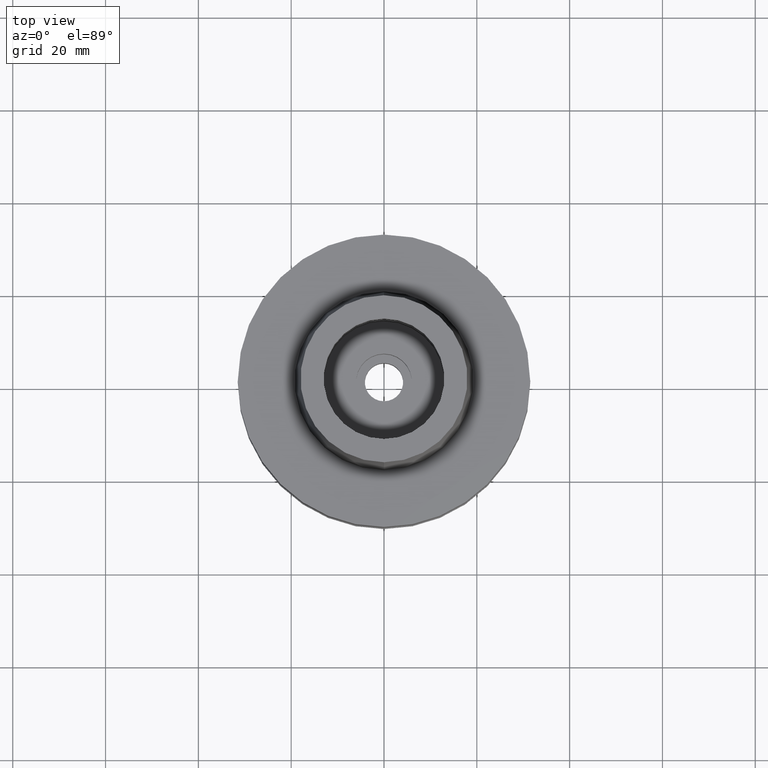
[diagram: clean part render]
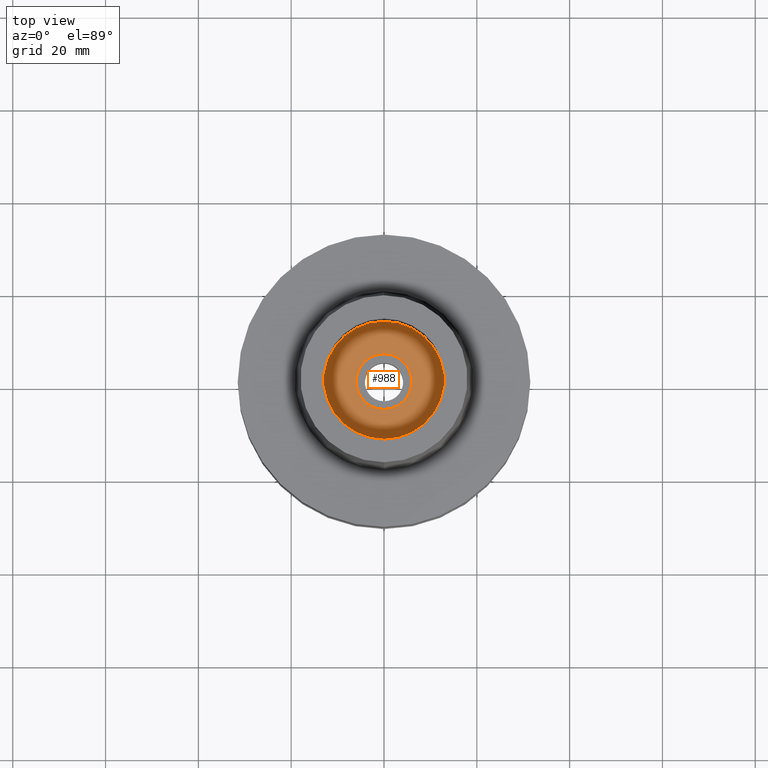
[diagram: same view with one face highlighted and labeled with its STEP entity id]
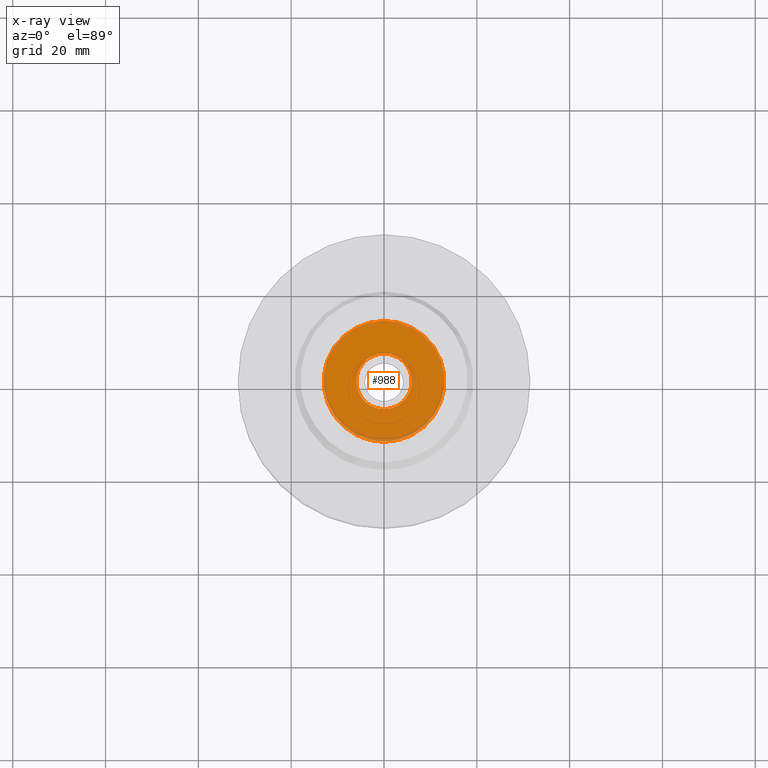
[diagram: x-ray of the same camera — body ghosted, the highlighted face saturated]
A machine part, top view. The second image highlights one B-rep face of the part: STEP entity #988.
The next image is the same camera in x-ray: the body ghosted, the highlighted face saturated — about 4% of this face is hidden behind the body in this view.
In plain terms, the highlighted planar face has unit normal (0, 0, 1).
Its self-contained STEP definition (entity closure, byte-faithful):
#56 = CARTESIAN_POINT ( 'NONE',  ( 0.0000000000000000000, 0.0000000000000000000, -9.950000000000001066 ) ) ;
#148 = AXIS2_PLACEMENT_3D ( 'NONE', #56, #283, #1610 ) ;
#241 = EDGE_CURVE ( 'NONE', #1287, #1796, #976, .T. ) ;
#265 = DIRECTION ( 'NONE',  ( 0.0000000000000000000, 0.0000000000000000000, 1.000000000000000000 ) ) ;
#283 = DIRECTION ( 'NONE',  ( 0.0000000000000000000, 0.0000000000000000000, 1.000000000000000000 ) ) ;
#321 = DIRECTION ( 'NONE',  ( 0.0000000000000000000, -1.000000000000000000, 0.0000000000000000000 ) ) ;
#422 = CIRCLE ( 'NONE', #1122, 6.000000000000000000 ) ;
#480 = CIRCLE ( 'NONE', #1362, 13.00000000000000000 ) ;
#485 = EDGE_CURVE ( 'NONE', #1744, #2496, #422, .T. ) ;
#553 = ORIENTED_EDGE ( 'NONE', *, *, #485, .F. ) ;
#649 = CARTESIAN_POINT ( 'NONE',  ( 0.0000000000000000000, -13.00000000000000000, -9.950000000000001066 ) ) ;
#702 = FACE_OUTER_BOUND ( 'NONE', #1651, .T. ) ;
#745 = CARTESIAN_POINT ( 'NONE',  ( 0.0000000000000000000, 0.0000000000000000000, -9.950000000000001066 ) ) ;
#843 = ORIENTED_EDGE ( 'NONE', *, *, #1244, .F. ) ;
#895 = DIRECTION ( 'NONE',  ( 0.0000000000000000000, 1.000000000000000000, 0.0000000000000000000 ) ) ;
#944 = PLANE ( 'NONE',  #148 ) ;
#976 = CIRCLE ( 'NONE', #2587, 13.00000000000000000 ) ;
#988 = ADVANCED_FACE ( 'NONE', ( #702, #2684 ), #944, .T. ) ;
#1122 = AXIS2_PLACEMENT_3D ( 'NONE', #2224, #265, #895 ) ;
#1189 = CARTESIAN_POINT ( 'NONE',  ( 0.0000000000000000000, -6.000000000000000000, -9.950000000000001066 ) ) ;
#1195 = EDGE_LOOP ( 'NONE', ( #553, #843 ) ) ;
#1244 = EDGE_CURVE ( 'NONE', #2496, #1744, #2554, .T. ) ;
#1287 = VERTEX_POINT ( 'NONE', #649 ) ;
#1289 = DIRECTION ( 'NONE',  ( 0.0000000000000000000, 0.0000000000000000000, -1.000000000000000000 ) ) ;
#1362 = AXIS2_PLACEMENT_3D ( 'NONE', #745, #2755, #2141 ) ;
#1461 = ORIENTED_EDGE ( 'NONE', *, *, #1626, .F. ) ;
#1602 = AXIS2_PLACEMENT_3D ( 'NONE', #2543, #2320, #321 ) ;
#1610 = DIRECTION ( 'NONE',  ( 1.000000000000000000, 0.0000000000000000000, 0.0000000000000000000 ) ) ;
#1626 = EDGE_CURVE ( 'NONE', #1796, #1287, #480, .T. ) ;
#1651 = EDGE_LOOP ( 'NONE', ( #1461, #2133 ) ) ;
#1744 = VERTEX_POINT ( 'NONE', #2743 ) ;
#1753 = DIRECTION ( 'NONE',  ( 0.0000000000000000000, -1.000000000000000000, 0.0000000000000000000 ) ) ;
#1796 = VERTEX_POINT ( 'NONE', #2781 ) ;
#1922 = CARTESIAN_POINT ( 'NONE',  ( 0.0000000000000000000, 0.0000000000000000000, -9.950000000000001066 ) ) ;
#2133 = ORIENTED_EDGE ( 'NONE', *, *, #241, .F. ) ;
#2141 = DIRECTION ( 'NONE',  ( 0.0000000000000000000, 1.000000000000000000, 0.0000000000000000000 ) ) ;
#2224 = CARTESIAN_POINT ( 'NONE',  ( 0.0000000000000000000, 0.0000000000000000000, -9.950000000000001066 ) ) ;
#2320 = DIRECTION ( 'NONE',  ( 0.0000000000000000000, 0.0000000000000000000, 1.000000000000000000 ) ) ;
#2496 = VERTEX_POINT ( 'NONE', #1189 ) ;
#2543 = CARTESIAN_POINT ( 'NONE',  ( 0.0000000000000000000, 0.0000000000000000000, -9.950000000000001066 ) ) ;
#2554 = CIRCLE ( 'NONE', #1602, 6.000000000000000000 ) ;
#2587 = AXIS2_PLACEMENT_3D ( 'NONE', #1922, #1289, #1753 ) ;
#2684 = FACE_BOUND ( 'NONE', #1195, .T. ) ;
#2743 = CARTESIAN_POINT ( 'NONE',  ( 0.0000000000000000000, 6.000000000000000000, -9.950000000000001066 ) ) ;
#2755 = DIRECTION ( 'NONE',  ( 0.0000000000000000000, 0.0000000000000000000, -1.000000000000000000 ) ) ;
#2781 = CARTESIAN_POINT ( 'NONE',  ( 0.0000000000000000000, 13.00000000000000000, -9.950000000000001066 ) ) ;